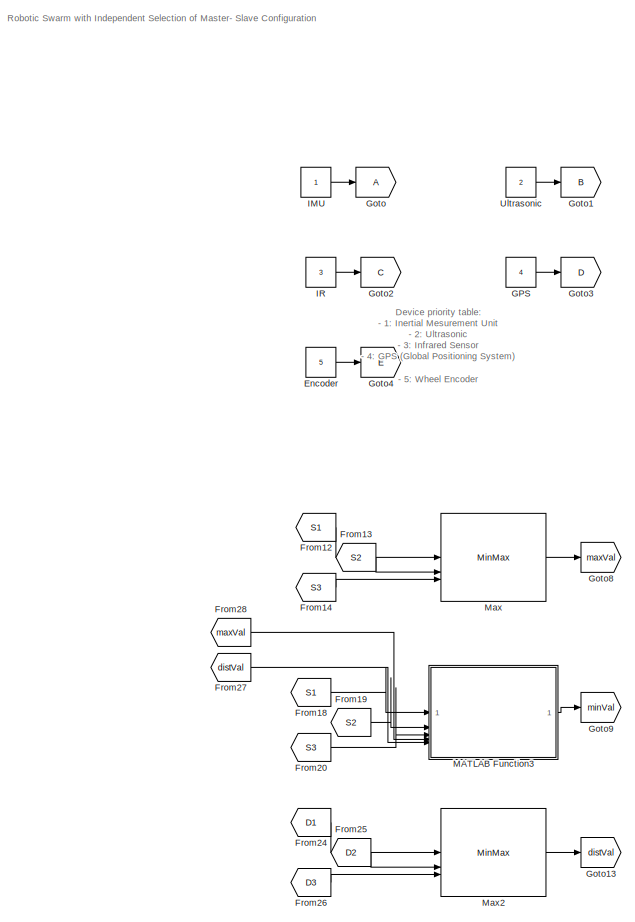
[diagram: root canvas - part 1/3, top left region]
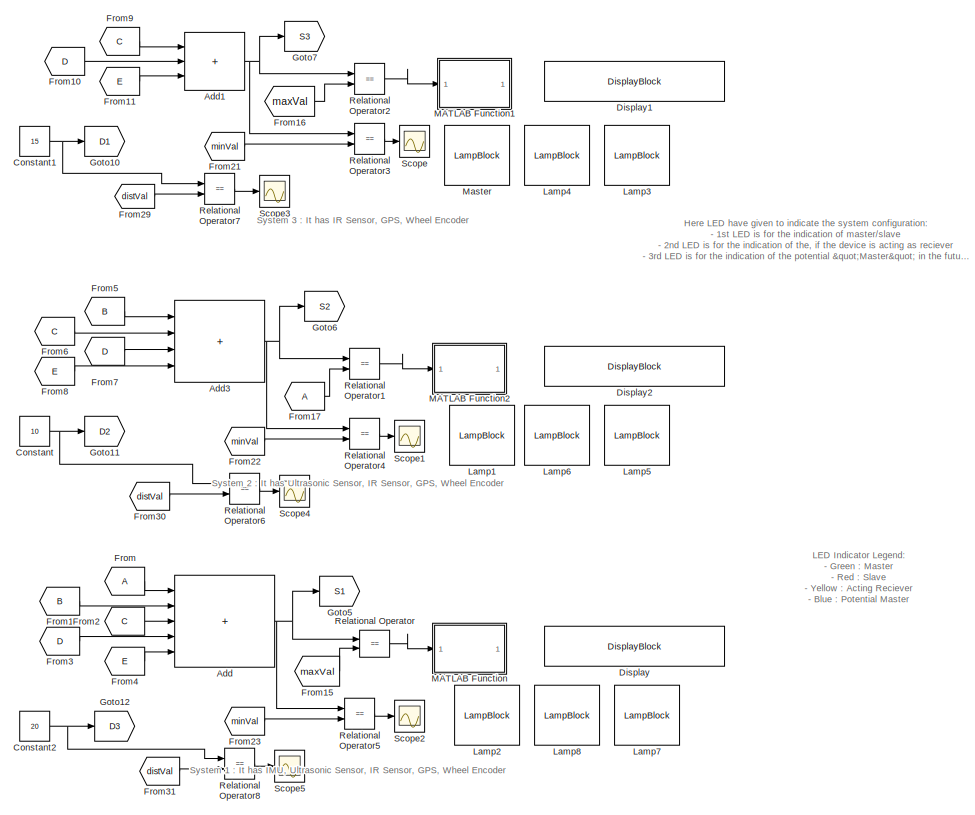
[diagram: root canvas - part 2/3, top right region]
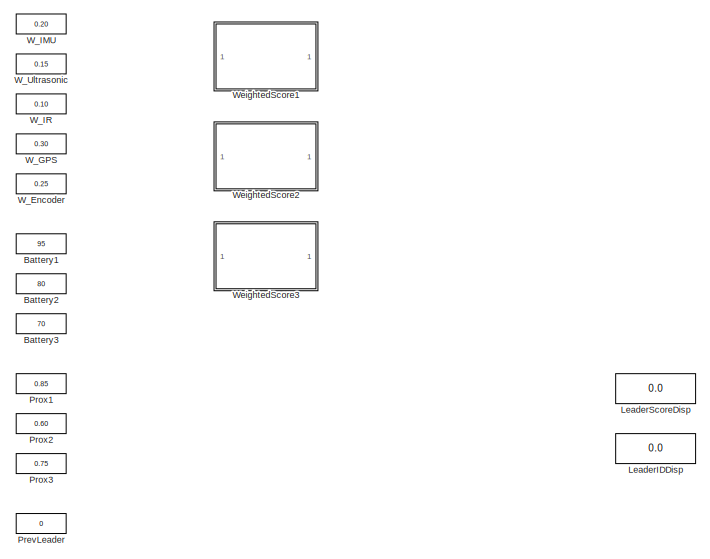
[diagram: root canvas - part 3/3, bottom right region]
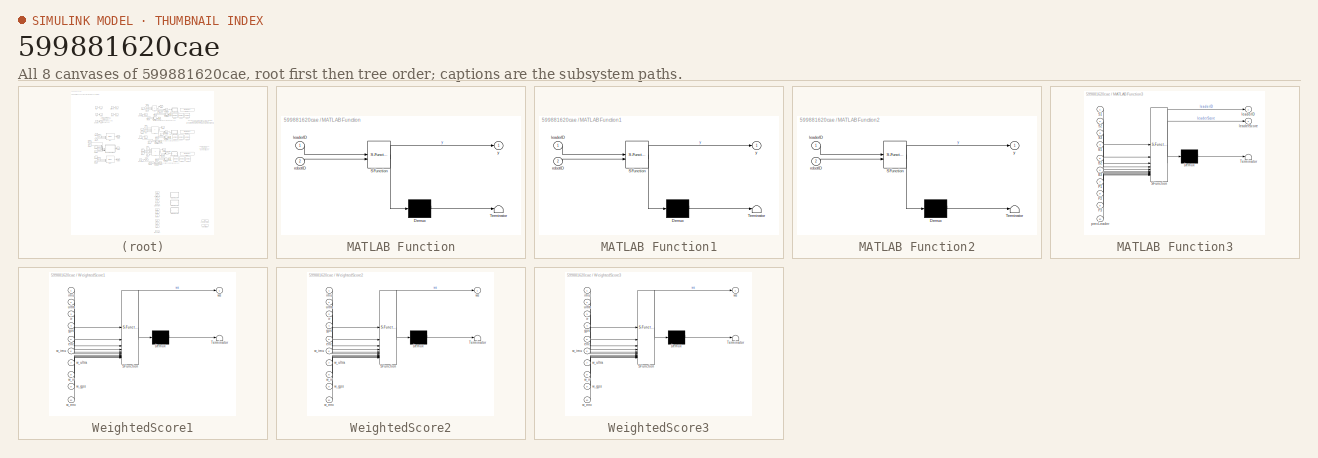
[diagram: thumbnail index - all 8 canvases of the model, root first then tree order]
MODEL slx_599881620cae
KIND model
CONFIG AbsTol = auto
CONFIG EnableMultiTasking = off
CONFIG FixedStep = auto
CONFIG MaxStep = auto
CONFIG MinStep = auto
CONFIG RelTol = 1e-3
CONFIG SampleTimeConstraint = Unconstrained
CONFIG SolverName = VariableStepAuto
CONFIG StartTime = 0.0
CONFIG StopTime = 10.0
BLOCK [Sum] Add
  IconShape = rectangular
  Inputs = +++++
BLOCK [Sum] Add1
  IconShape = rectangular
  Inputs = +++
BLOCK [Sum] Add3
  IconShape = rectangular
  Inputs = ++++
BLOCK [Constant] Battery1
  Value = 95
BLOCK [Constant] Battery2
  Value = 80
BLOCK [Constant] Battery3
  Value = 70
BLOCK [Constant] Constant
  Value = 10
BLOCK [Constant] Constant1
  Value = 15
BLOCK [Constant] Constant2
  Value = 20
BLOCK [DisplayBlock] Display
  GridColor = [0.502, 0.502, 0.502]
  LabelPosition = Hide
  Transparency = 1
BLOCK [DisplayBlock] Display1
  GridColor = [0.502, 0.502, 0.502]
  LabelPosition = Hide
  Transparency = 1
BLOCK [DisplayBlock] Display2
  GridColor = [0.502, 0.502, 0.502]
  LabelPosition = Hide
  Transparency = 1
BLOCK [Constant] Encoder
  Value = 5
BLOCK [From] From
BLOCK [From] From1
  GotoTag = B
BLOCK [From] From10
  GotoTag = D
BLOCK [From] From11
  GotoTag = E
BLOCK [From] From12
  GotoTag = S1
BLOCK [From] From13
  GotoTag = S2
BLOCK [From] From14
  GotoTag = S3
BLOCK [From] From15
  GotoTag = maxVal
BLOCK [From] From16
  GotoTag = maxVal
BLOCK [From] From17
BLOCK [From] From18
  GotoTag = S1
BLOCK [From] From19
  GotoTag = S2
BLOCK [From] From2
  GotoTag = C
BLOCK [From] From20
  GotoTag = S3
BLOCK [From] From21
  GotoTag = minVal
BLOCK [From] From22
  GotoTag = minVal
BLOCK [From] From23
  GotoTag = minVal
BLOCK [From] From24
  GotoTag = D1
BLOCK [From] From25
  GotoTag = D2
BLOCK [From] From26
  GotoTag = D3
BLOCK [From] From27
  GotoTag = distVal
BLOCK [From] From28
  GotoTag = maxVal
BLOCK [From] From29
  GotoTag = distVal
BLOCK [From] From3
  GotoTag = D
BLOCK [From] From30
  GotoTag = distVal
BLOCK [From] From31
  GotoTag = distVal
BLOCK [From] From4
  GotoTag = E
BLOCK [From] From5
  GotoTag = B
BLOCK [From] From6
  GotoTag = C
BLOCK [From] From7
  GotoTag = D
BLOCK [From] From8
  GotoTag = E
BLOCK [From] From9
  GotoTag = C
BLOCK [Constant] GPS
  Value = 4
BLOCK [Goto] Goto
BLOCK [Goto] Goto1
  GotoTag = B
BLOCK [Goto] Goto10
  GotoTag = D1
BLOCK [Goto] Goto11
  GotoTag = D2
BLOCK [Goto] Goto12
  GotoTag = D3
BLOCK [Goto] Goto13
  GotoTag = distVal
BLOCK [Goto] Goto2
  GotoTag = C
BLOCK [Goto] Goto3
  GotoTag = D
BLOCK [Goto] Goto4
  GotoTag = E
BLOCK [Goto] Goto5
  GotoTag = S1
BLOCK [Goto] Goto6
  GotoTag = S2
BLOCK [Goto] Goto7
  GotoTag = S3
BLOCK [Goto] Goto8
  GotoTag = maxVal
BLOCK [Goto] Goto9
  GotoTag = minVal
BLOCK [Constant] IMU
BLOCK [Constant] IR
  Value = 3
BLOCK [LampBlock] Lamp1
  DefaultColor = [192.0, 192.0, 192.0]
  LabelPosition = Hide
BLOCK [LampBlock] Lamp2
  DefaultColor = [192.0, 192.0, 192.0]
  LabelPosition = Hide
BLOCK [LampBlock] Lamp3
  DefaultColor = [192.0, 192.0, 192.0]
  LabelPosition = Hide
BLOCK [LampBlock] Lamp4
  DefaultColor = [192.0, 192.0, 192.0]
  LabelPosition = Hide
BLOCK [LampBlock] Lamp5
  DefaultColor = [192.0, 192.0, 192.0]
  LabelPosition = Hide
BLOCK [LampBlock] Lamp6
  DefaultColor = [192.0, 192.0, 192.0]
  LabelPosition = Hide
BLOCK [LampBlock] Lamp7
  DefaultColor = [192.0, 192.0, 192.0]
  LabelPosition = Hide
BLOCK [LampBlock] Lamp8
  DefaultColor = [192.0, 192.0, 192.0]
  LabelPosition = Hide
BLOCK [Display] LeaderIDDisp
  Decimation = 1
BLOCK [Display] LeaderScoreDisp
  Decimation = 1
BLOCK [SubSystem] MATLAB Function
  ErrorFcn = Stateflow.Translate.translate
  LibrarySourceBlock = simulink/User-Defined\nFunctions/MATLAB Function
  PermitHierarchicalResolution = ExplicitOnly
  SFBlockType = MATLAB Function
  TreatAsAtomicUnit = on
BLOCK [Demux] MATLAB Function/ Demux 
  Outputs = 1
BLOCK [S-Function] MATLAB Function/ SFunction 
  EnableBusSupport = off
  FunctionName = sf_sfun
  PortCounts = [2 2]
  SFcnIsStateOwnerBlock = off
  SFunctionDeploymentMode = off
  Tag = Stateflow S-Function 2
BLOCK [Terminator] MATLAB Function/ Terminator 
BLOCK [Inport] MATLAB Function/leaderID
BLOCK [Inport] MATLAB Function/robotID
  Port = 2
BLOCK [Outport] MATLAB Function/y
BLOCK [SubSystem] MATLAB Function1
  ErrorFcn = Stateflow.Translate.translate
  LibrarySourceBlock = simulink/User-Defined\nFunctions/MATLAB Function
  PermitHierarchicalResolution = ExplicitOnly
  SFBlockType = MATLAB Function
  TreatAsAtomicUnit = on
BLOCK [Demux] MATLAB Function1/ Demux 
  Outputs = 1
BLOCK [S-Function] MATLAB Function1/ SFunction 
  EnableBusSupport = off
  FunctionName = sf_sfun
  PortCounts = [2 2]
  SFcnIsStateOwnerBlock = off
  SFunctionDeploymentMode = off
  Tag = Stateflow S-Function 1
BLOCK [Terminator] MATLAB Function1/ Terminator 
BLOCK [Inport] MATLAB Function1/leaderID
BLOCK [Inport] MATLAB Function1/robotID
  Port = 2
BLOCK [Outport] MATLAB Function1/y
BLOCK [SubSystem] MATLAB Function2
  ErrorFcn = Stateflow.Translate.translate
  LibrarySourceBlock = simulink/User-Defined\nFunctions/MATLAB Function
  PermitHierarchicalResolution = ExplicitOnly
  SFBlockType = MATLAB Function
  TreatAsAtomicUnit = on
BLOCK [Demux] MATLAB Function2/ Demux 
  Outputs = 1
BLOCK [S-Function] MATLAB Function2/ SFunction 
  EnableBusSupport = off
  FunctionName = sf_sfun
  PortCounts = [2 2]
  SFcnIsStateOwnerBlock = off
  SFunctionDeploymentMode = off
  Tag = Stateflow S-Function 3
BLOCK [Terminator] MATLAB Function2/ Terminator 
BLOCK [Inport] MATLAB Function2/leaderID
BLOCK [Inport] MATLAB Function2/robotID
  Port = 2
BLOCK [Outport] MATLAB Function2/y
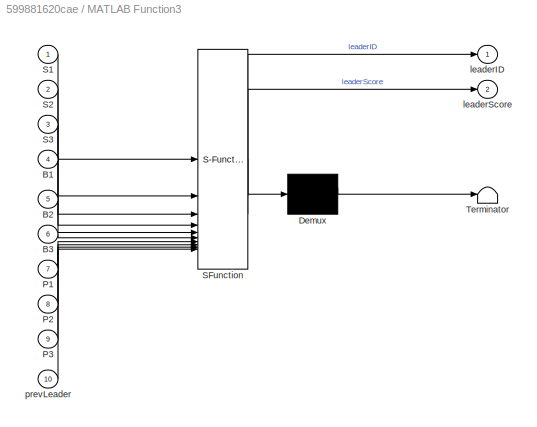
BLOCK [SubSystem] MATLAB Function3
  ErrorFcn = Stateflow.Translate.translate
  LibrarySourceBlock = simulink/User-Defined\nFunctions/MATLAB Function
  PermitHierarchicalResolution = ExplicitOnly
  SFBlockType = MATLAB Function
  TreatAsAtomicUnit = on
BLOCK [Demux] MATLAB Function3/ Demux 
  Outputs = 1
BLOCK [S-Function] MATLAB Function3/ SFunction 
  EnableBusSupport = off
  FunctionName = sf_sfun
  PortCounts = [10 3]
  SFcnIsStateOwnerBlock = off
  SFunctionDeploymentMode = off
  Tag = Stateflow S-Function 4
BLOCK [Terminator] MATLAB Function3/ Terminator 
BLOCK [Inport] MATLAB Function3/B1
  Port = 4
BLOCK [Inport] MATLAB Function3/B2
  Port = 5
BLOCK [Inport] MATLAB Function3/B3
  Port = 6
BLOCK [Inport] MATLAB Function3/P1
  Port = 7
BLOCK [Inport] MATLAB Function3/P2
  Port = 8
BLOCK [Inport] MATLAB Function3/P3
  Port = 9
BLOCK [Inport] MATLAB Function3/S1
BLOCK [Inport] MATLAB Function3/S2
  Port = 2
BLOCK [Inport] MATLAB Function3/S3
  Port = 3
BLOCK [Outport] MATLAB Function3/leaderID
BLOCK [Outport] MATLAB Function3/leaderScore
  Port = 2
BLOCK [Inport] MATLAB Function3/prevLeader
  Port = 10
BLOCK [LampBlock] Master
  DefaultColor = [192.0, 192.0, 192.0]
  LabelPosition = Hide
BLOCK [MinMax] Max
  Function = max
  Inputs = 3
BLOCK [MinMax] Max2
  Inputs = 3
BLOCK [Constant] PrevLeader
  Value = 0
BLOCK [Constant] Prox1
  Value = 0.85
BLOCK [Constant] Prox2
  Value = 0.60
BLOCK [Constant] Prox3
  Value = 0.75
BLOCK [RelationalOperator] Relational Operator
  InputSameDT = off
  Operator = ==
  OutDataTypeStr = boolean
  RndMeth = Simplest
BLOCK [RelationalOperator] Relational Operator1
  InputSameDT = off
  Operator = ==
  OutDataTypeStr = boolean
  RndMeth = Simplest
BLOCK [RelationalOperator] Relational Operator2
  InputSameDT = off
  Operator = ==
  OutDataTypeStr = boolean
  RndMeth = Simplest
BLOCK [RelationalOperator] Relational Operator3
  InputSameDT = off
  Operator = ==
  OutDataTypeStr = boolean
  RndMeth = Simplest
BLOCK [RelationalOperator] Relational Operator4
  InputSameDT = off
  Operator = ==
  OutDataTypeStr = boolean
  RndMeth = Simplest
BLOCK [RelationalOperator] Relational Operator5
  InputSameDT = off
  Operator = ==
  OutDataTypeStr = boolean
  RndMeth = Simplest
BLOCK [RelationalOperator] Relational Operator6
  InputSameDT = off
  Operator = ==
  OutDataTypeStr = boolean
  RndMeth = Simplest
BLOCK [RelationalOperator] Relational Operator7
  InputSameDT = off
  Operator = ==
  OutDataTypeStr = boolean
  RndMeth = Simplest
BLOCK [RelationalOperator] Relational Operator8
  InputSameDT = off
  Operator = ==
  OutDataTypeStr = boolean
  RndMeth = Simplest
BLOCK [Scope] Scope
  Floating = off
  GraphicalSettings = {"GraphicalSettings":{"LegacySettings":true,"Style":{"Style":{"CurrentConfiguration":"extmgr.ConfigurationSet","MinimizeControls":"false","PlotType":"Auto","Version":"2023a"}}}}
  NumInputPorts = 1
  WasSavedAsWebScope = on
BLOCK [Scope] Scope1
  DataLoggingVariableName = ScopeData1
  Floating = off
  GraphicalSettings = {"GraphicalSettings":{"LegacySettings":true,"Style":{"Style":{"CurrentConfiguration":"extmgr.ConfigurationSet","MinimizeControls":"false","PlotType":"Auto","Version":"2023a"}}}}
  NumInputPorts = 1
  WasSavedAsWebScope = on
BLOCK [Scope] Scope2
  DataLoggingVariableName = ScopeData2
  Floating = off
  GraphicalSettings = {"GraphicalSettings":{"LegacySettings":true,"Style":{"Style":{"CurrentConfiguration":"extmgr.ConfigurationSet","MinimizeControls":"false","PlotType":"Auto","Version":"2023a"}}}}
  NumInputPorts = 1
  WasSavedAsWebScope = on
BLOCK [Scope] Scope3
  ActiveDisplayYMaximum = 1
  ActiveDisplayYMinimum = -1
  DataLoggingVariableName = ScopeData3
  Floating = off
  GraphicalSettings = {"GraphicalSettings":{"LegacySettings":true,"Style":{"Style":{"AxesColor":"[0 0 0]","ChannelNames":[""],"ColorOrder":"[1 1 0.0666666666666667;0.0745098039215686 0.623529411764706 1;1 0.411764705882353 0.16078431372549;0.392156862745098 0.831372549019608 0.0745098039215686;0.717647058823529 0.274509803921569 1;0.0588235294117647 1 1;1 0.0745098039215686 0.650980392156863]","CurrentConfiguration":"e...<+357ch>  <repeated x3 — deduplicated; at blocks: Scope3, Scope4, Scope5>
  MultipleDisplayCache = [{"MaxYLimMag":1,"MaxYLimReal":1,"MinYLimMag":0,"MinYLimReal":-1,"PlotAsMagnitudePhase":false,"ShowGrid":true,"ShowLegend":false,"Title":"%<SignalLabel>","YLabel":""}]
  NumInputPorts = 1
  WasSavedAsWebScope = on
BLOCK [Scope] Scope4
  ActiveDisplayYMaximum = 1.1
  ActiveDisplayYMinimum = 0.9
  DataLoggingVariableName = ScopeData4
  Floating = off
  MultipleDisplayCache = [{"MaxYLimMag":1.1,"MaxYLimReal":1.1,"MinYLimMag":0.9,"MinYLimReal":0.9,"PlotAsMagnitudePhase":false,"ShowGrid":true,"ShowLegend":false,"Title":"%<SignalLabel>","YLabel":""}]
  NumInputPorts = 1
  WasSavedAsWebScope = on
BLOCK [Scope] Scope5
  ActiveDisplayYMaximum = 1
  ActiveDisplayYMinimum = -1
  DataLoggingVariableName = ScopeData5
  Floating = off
  MultipleDisplayCache = [{"MaxYLimMag":1,"MaxYLimReal":1,"MinYLimMag":0,"MinYLimReal":-1,"PlotAsMagnitudePhase":false,"ShowGrid":true,"ShowLegend":false,"Title":"%<SignalLabel>","YLabel":""}]
  NumInputPorts = 1
  WasSavedAsWebScope = on
BLOCK [Constant] Ultrasonic
  Value = 2
BLOCK [Constant] W_Encoder
  Value = 0.25
BLOCK [Constant] W_GPS
  Value = 0.30
BLOCK [Constant] W_IMU
  Value = 0.20
BLOCK [Constant] W_IR
  Value = 0.10
BLOCK [Constant] W_Ultrasonic
  Value = 0.15
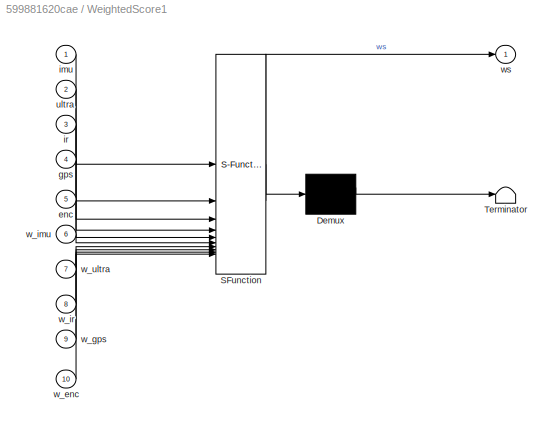
BLOCK [SubSystem] WeightedScore1
  ErrorFcn = Stateflow.Translate.translate
  PermitHierarchicalResolution = ExplicitOnly
  SFBlockType = MATLAB Function
  TreatAsAtomicUnit = on
BLOCK [Demux] WeightedScore1/ Demux 
  Outputs = 1
BLOCK [S-Function] WeightedScore1/ SFunction 
  EnableBusSupport = off
  FunctionName = sf_sfun
  PortCounts = [10 2]
  SFcnIsStateOwnerBlock = off
  SFunctionDeploymentMode = off
  Tag = Stateflow S-Function 5
BLOCK [Terminator] WeightedScore1/ Terminator 
BLOCK [Inport] WeightedScore1/enc
  Port = 5
BLOCK [Inport] WeightedScore1/gps
  Port = 4
BLOCK [Inport] WeightedScore1/imu
BLOCK [Inport] WeightedScore1/ir
  Port = 3
BLOCK [Inport] WeightedScore1/ultra
  Port = 2
BLOCK [Inport] WeightedScore1/w_enc
  Port = 10
BLOCK [Inport] WeightedScore1/w_gps
  Port = 9
BLOCK [Inport] WeightedScore1/w_imu
  Port = 6
BLOCK [Inport] WeightedScore1/w_ir
  Port = 8
BLOCK [Inport] WeightedScore1/w_ultra
  Port = 7
BLOCK [Outport] WeightedScore1/ws
BLOCK [SubSystem] WeightedScore2
  ErrorFcn = Stateflow.Translate.translate
  PermitHierarchicalResolution = ExplicitOnly
  SFBlockType = MATLAB Function
  TreatAsAtomicUnit = on
BLOCK [Demux] WeightedScore2/ Demux 
  Outputs = 1
BLOCK [S-Function] WeightedScore2/ SFunction 
  EnableBusSupport = off
  FunctionName = sf_sfun
  PortCounts = [10 2]
  SFcnIsStateOwnerBlock = off
  SFunctionDeploymentMode = off
  Tag = Stateflow S-Function 6
BLOCK [Terminator] WeightedScore2/ Terminator 
BLOCK [Inport] WeightedScore2/enc
  Port = 5
BLOCK [Inport] WeightedScore2/gps
  Port = 4
BLOCK [Inport] WeightedScore2/imu
BLOCK [Inport] WeightedScore2/ir
  Port = 3
BLOCK [Inport] WeightedScore2/ultra
  Port = 2
BLOCK [Inport] WeightedScore2/w_enc
  Port = 10
BLOCK [Inport] WeightedScore2/w_gps
  Port = 9
BLOCK [Inport] WeightedScore2/w_imu
  Port = 6
BLOCK [Inport] WeightedScore2/w_ir
  Port = 8
BLOCK [Inport] WeightedScore2/w_ultra
  Port = 7
BLOCK [Outport] WeightedScore2/ws
BLOCK [SubSystem] WeightedScore3
  ErrorFcn = Stateflow.Translate.translate
  PermitHierarchicalResolution = ExplicitOnly
  SFBlockType = MATLAB Function
  TreatAsAtomicUnit = on
BLOCK [Demux] WeightedScore3/ Demux 
  Outputs = 1
BLOCK [S-Function] WeightedScore3/ SFunction 
  EnableBusSupport = off
  FunctionName = sf_sfun
  PortCounts = [10 2]
  SFcnIsStateOwnerBlock = off
  SFunctionDeploymentMode = off
  Tag = Stateflow S-Function 7
BLOCK [Terminator] WeightedScore3/ Terminator 
BLOCK [Inport] WeightedScore3/enc
  Port = 5
BLOCK [Inport] WeightedScore3/gps
  Port = 4
BLOCK [Inport] WeightedScore3/imu
BLOCK [Inport] WeightedScore3/ir
  Port = 3
BLOCK [Inport] WeightedScore3/ultra
  Port = 2
BLOCK [Inport] WeightedScore3/w_enc
  Port = 10
BLOCK [Inport] WeightedScore3/w_gps
  Port = 9
BLOCK [Inport] WeightedScore3/w_imu
  Port = 6
BLOCK [Inport] WeightedScore3/w_ir
  Port = 8
BLOCK [Inport] WeightedScore3/w_ultra
  Port = 7
BLOCK [Outport] WeightedScore3/ws
ANNOTATION (root): Device priority table: - 1: Inertial Mesurement Unit - 2: Ultrasonic - 3: Infrared Sensor - 4: GPS (Global Positioning System) - 5: Wheel Encoder Here 1 has the highest priority and 5 has the lowest priority
ANNOTATION (root): System 1 : It has IMU, Ultrasonic Sensor, IR Sensor, GPS, Wheel Encoder
ANNOTATION (root): System 2 : It has Ultrasonic Sensor, IR Sensor, GPS, Wheel Encoder
ANNOTATION (root): System 3 : It has IR Sensor, GPS, Wheel Encoder
ANNOTATION (root): Here LED have given to indicate the system configuration: - 1st LED is for the indication of master/slave - 2nd LED is for the indication of the, if the device is acting as reciever - 3rd LED is for the indication of the potential "Master" in the future in case the current master becomes offline due to any reason
ANNOTATION (root): LED Indicator Legend: - Green : Master - Red : Slave - Yellow : Acting Reciever - Blue : Potential Master
ANNOTATION (root): Robotic Swarm with Independent Selection of Master- Slave Configuration
NET Add1:1 -> Goto7:1, Relational Operator2:1, Relational Operator3:1
NET Add3:1 -> Goto6:1, Relational Operator1:1, Relational Operator4:1
NET Add:1 -> Goto5:1, Relational Operator5:1, Relational Operator:1
NET Constant1:1 -> Goto10:1, Relational Operator7:1
NET Constant2:1 -> Goto12:1, Relational Operator8:1
NET Constant:1 -> Goto11:1, Relational Operator6:1
LINE Encoder:1 -> Goto4:1
LINE From10:1 -> Add1:2
LINE From11:1 -> Add1:3
LINE From12:1 -> Max:1
LINE From13:1 -> Max:2
LINE From14:1 -> Max:3
LINE From15:1 -> Relational Operator:2
LINE From16:1 -> Relational Operator2:2
LINE From17:1 -> Relational Operator1:2
LINE From18:1 -> MATLAB Function3:1
LINE From19:1 -> MATLAB Function3:2
LINE From1:1 -> Add:2
LINE From20:1 -> MATLAB Function3:3
LINE From21:1 -> Relational Operator3:2
LINE From22:1 -> Relational Operator4:2
LINE From23:1 -> Relational Operator5:2
LINE From24:1 -> Max2:1
LINE From25:1 -> Max2:2
LINE From26:1 -> Max2:3
LINE From27:1 -> MATLAB Function3:5
LINE From28:1 -> MATLAB Function3:4
LINE From29:1 -> Relational Operator7:2
LINE From2:1 -> Add:3
LINE From30:1 -> Relational Operator6:2
LINE From31:1 -> Relational Operator8:2
LINE From3:1 -> Add:4
LINE From4:1 -> Add:5
LINE From5:1 -> Add3:1
LINE From6:1 -> Add3:2
LINE From7:1 -> Add3:3
LINE From8:1 -> Add3:4
LINE From9:1 -> Add1:1
LINE From:1 -> Add:1
LINE GPS:1 -> Goto3:1
LINE IMU:1 -> Goto:1
LINE IR:1 -> Goto2:1
LINE MATLAB Function3:1 -> Goto9:1
LINE Max2:1 -> Goto13:1
LINE Max:1 -> Goto8:1
LINE Relational Operator1:1 -> MATLAB Function2:1
LINE Relational Operator2:1 -> MATLAB Function1:1
LINE Relational Operator3:1 -> Scope:1
LINE Relational Operator4:1 -> Scope1:1
LINE Relational Operator5:1 -> Scope2:1
LINE Relational Operator6:1 -> Scope4:1
LINE Relational Operator7:1 -> Scope3:1
LINE Relational Operator8:1 -> Scope5:1
LINE Relational Operator:1 -> MATLAB Function:1
LINE Ultrasonic:1 -> Goto1:1
note: NET lines group one-source signal fan-out (src -> all destinations, sorted); 1:1 wires keep LINE
CHART MATLAB Function1 states=1 transitions=1
  STATE_LABEL 'eML_blk_kernel()'
  STATE_LABEL 'SCRIPT:\nfunction y = fcn1(leaderID, robotID)\n% Display Master/Slave based on leader election result\nif leaderID == robotID\n    y = "Master";\nelse\n    y = "Slave";\nend\n'
CHART MATLAB Function states=1 transitions=1
  STATE_LABEL 'eML_blk_kernel()'
  STATE_LABEL 'SCRIPT:\nfunction y = fcn(leaderID, robotID)\n% Display Master/Slave based on leader election result\nif leaderID == robotID\n    y = "Master";\nelse\n    y = "Slave";\nend\n'
CHART MATLAB Function2 states=1 transitions=1
  STATE_LABEL 'eML_blk_kernel()'
  STATE_LABEL 'SCRIPT:\nfunction y = fcn(leaderID, robotID)\n% Display Master/Slave based on leader election result\nif leaderID == robotID\n    y = "Master";\nelse\n    y = "Slave";\nend\n'
CHART MATLAB Function3 states=1 transitions=1
  STATE_LABEL 'eML_blk_kernel()'
  STATE_LABEL 'SCRIPT:\nfunction [leaderID, leaderScore] = fcn56(S1, S2, S3, B1, B2, B3, P1, P2, P3, prevLeader)\n% IMPROVED Dynamic Leader Selection Algorithm\n% Inputs:\n%   S1,S2,S3    - Weighted sensor scores for robots 1,2,3\n%   B1,B2,B3    - Battery levels (0-100)\n%   P1,P2,P3    - Proximity to centroid (0-1)\n%   prevLeader  - Previous leader ID (1,2, or 3)\n% Outputs:\n%   leaderID    - Selected leader (1,2, or...<+826ch>'
CHART WeightedScore1 states=1 transitions=1
  STATE_LABEL 'eML_blk_kernel()'
  STATE_LABEL 'SCRIPT:\nfunction ws = fcn(imu, ultra, ir, gps, enc, w_imu, w_ultra, w_ir, w_gps, w_enc)\n% Compute weighted sensor health score\n% Each sensor value represents health (0-5 scale), weights sum to 1\ntotal_w = w_imu + w_ultra + w_ir + w_gps + w_enc;\nws = (w_imu*imu + w_ultra*ultra + w_ir*ir + w_gps*gps + w_enc*enc) / total_w;\n'  <repeated x3 — deduplicated; at blocks: WeightedScore1, WeightedScore2, WeightedScore3>
CHART WeightedScore2 states=1 transitions=1
  STATE_LABEL 'eML_blk_kernel()'
CHART WeightedScore3 states=1 transitions=1
  STATE_LABEL 'eML_blk_kernel()'
CHART  states=0 transitions=0
CHART  states=0 transitions=0
CHART  states=0 transitions=0
CHART  states=0 transitions=0
CHART  states=0 transitions=0
CHART  states=0 transitions=0
CHART  states=0 transitions=0
